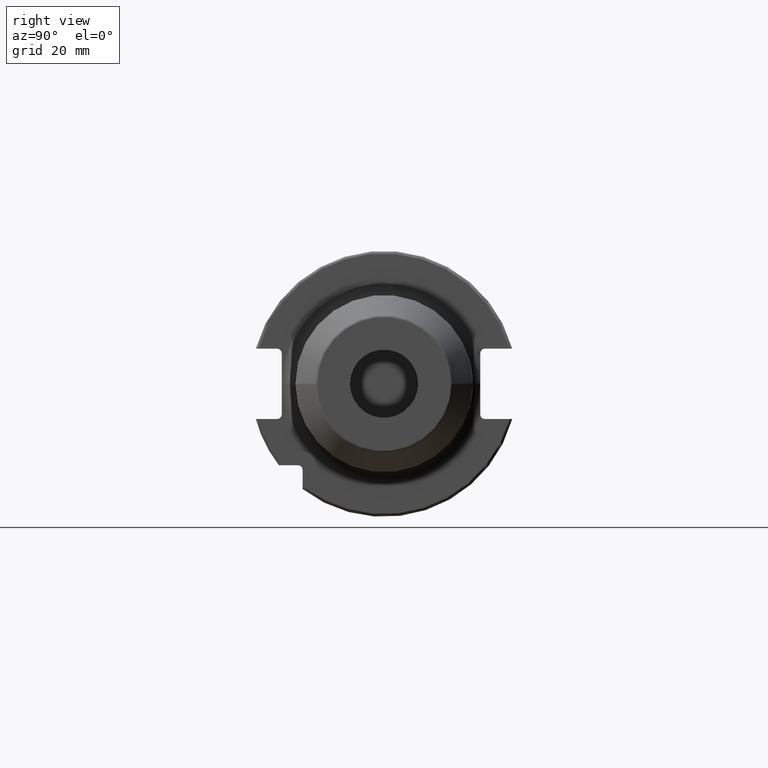
[diagram: clean part render]
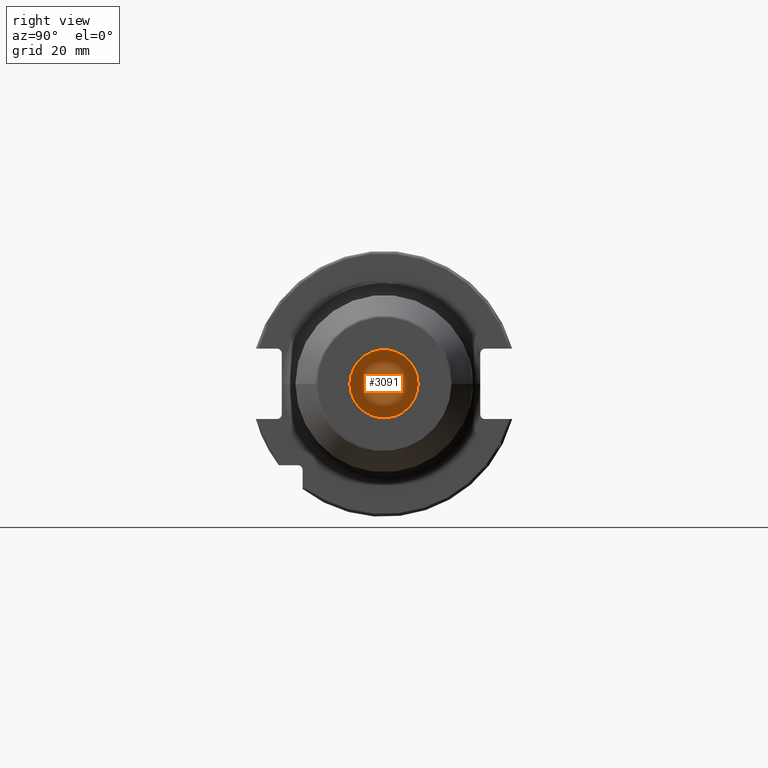
[diagram: same view with one face highlighted and labeled with its STEP entity id]
A machine part, right view. The second image highlights one B-rep face of the part: STEP entity #3091.
In plain terms, the highlighted planar face has unit normal (1, 0, 0).
Its self-contained STEP definition (entity closure, byte-faithful):
#1334=CARTESIAN_POINT('',(6.89E1,0.E0,0.E0));
#1335=DIRECTION('',(-1.E0,0.E0,0.E0));
#1336=DIRECTION('',(0.E0,1.E0,0.E0));
#1337=AXIS2_PLACEMENT_3D('',#1334,#1335,#1336);
#1339=CARTESIAN_POINT('',(6.89E1,0.E0,0.E0));
#1340=DIRECTION('',(1.E0,0.E0,0.E0));
#1341=DIRECTION('',(0.E0,1.E0,0.E0));
#1342=AXIS2_PLACEMENT_3D('',#1339,#1340,#1341);
#1759=CARTESIAN_POINT('',(6.89E1,1.25E1,0.E0));
#1760=CARTESIAN_POINT('',(6.89E1,-1.25E1,0.E0));
#1761=VERTEX_POINT('',#1759);
#1762=VERTEX_POINT('',#1760);
#3082=CARTESIAN_POINT('',(6.89E1,0.E0,0.E0));
#3083=DIRECTION('',(1.E0,0.E0,0.E0));
#3084=DIRECTION('',(0.E0,-1.E0,0.E0));
#3085=AXIS2_PLACEMENT_3D('',#3082,#3083,#3084);
#3086=PLANE('',#3085);
#3087=ORIENTED_EDGE('',*,*,#3050,.T.);
#3088=ORIENTED_EDGE('',*,*,#3024,.F.);
#3089=EDGE_LOOP('',(#3087,#3088));
#3090=FACE_OUTER_BOUND('',#3089,.F.);
#3091=ADVANCED_FACE('',(#3090),#3086,.T.);
#1338=CIRCLE('',#1337,1.25E1);
#1343=CIRCLE('',#1342,1.25E1);
#3024=EDGE_CURVE('',#1761,#1762,#1343,.T.);
#3050=EDGE_CURVE('',#1761,#1762,#1338,.T.);